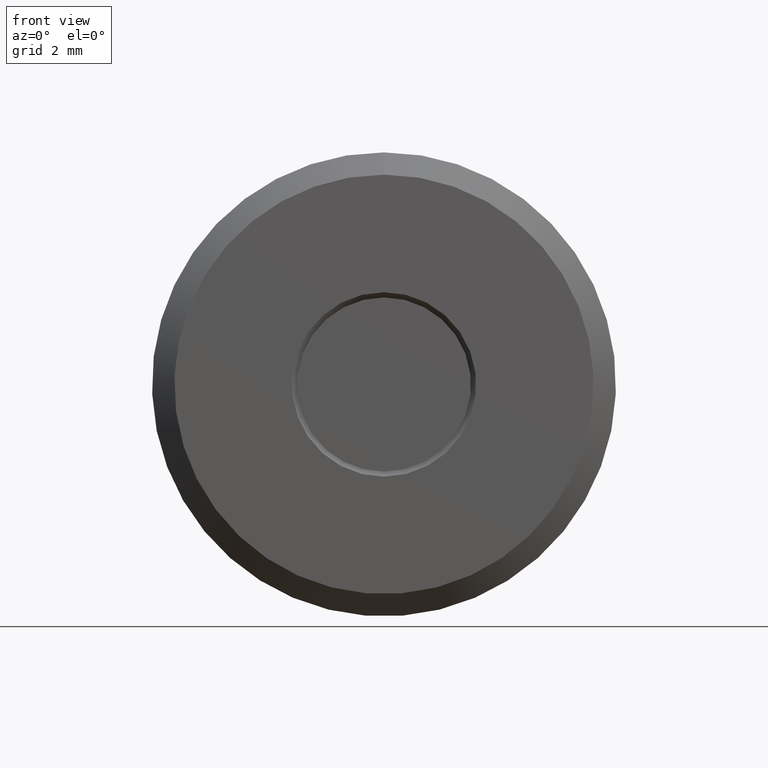
[diagram: clean part render]
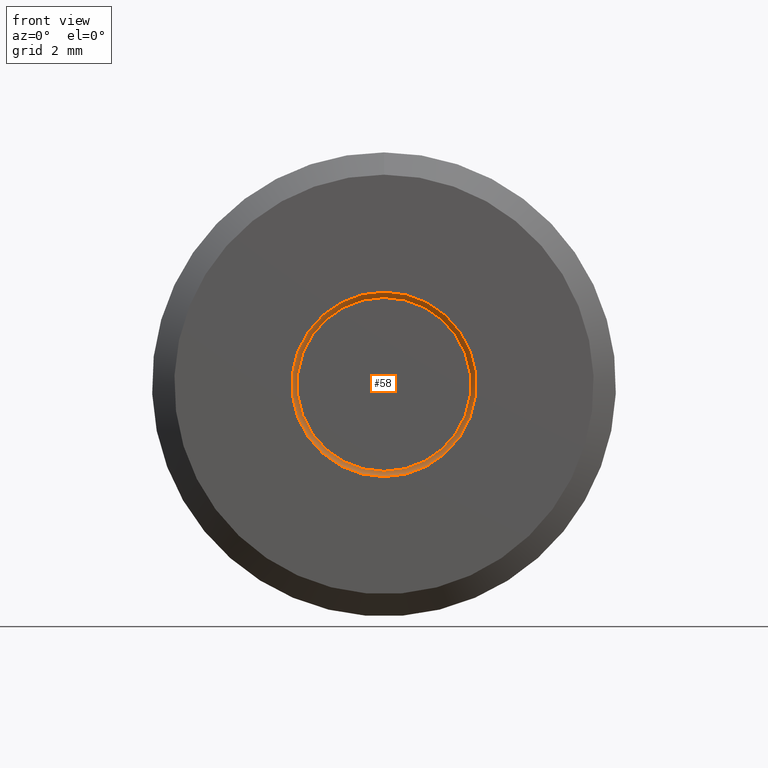
[diagram: same view with one face highlighted and labeled with its STEP entity id]
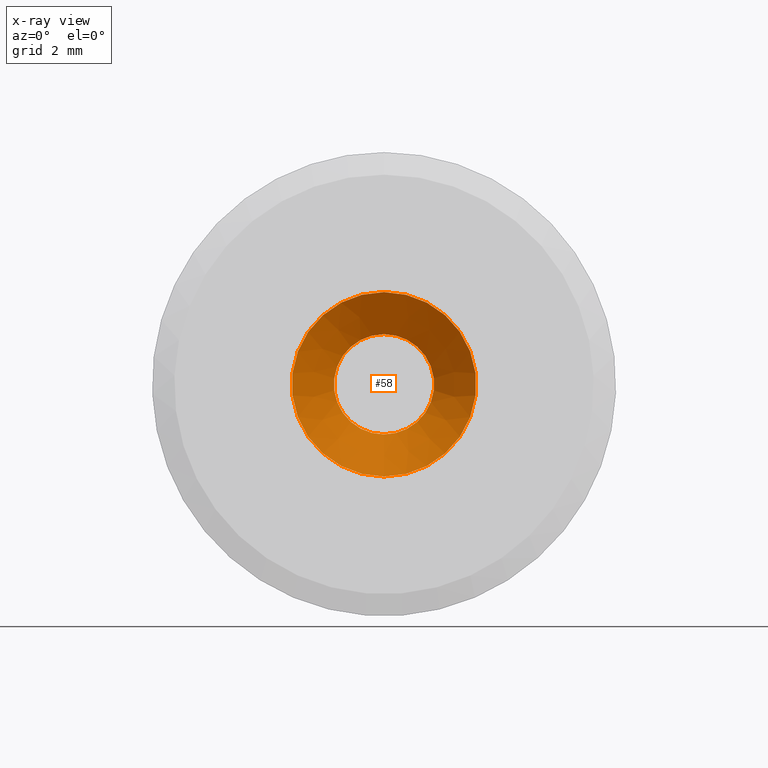
[diagram: x-ray of the same camera — body ghosted, the highlighted face saturated]
A machine part, front view. The second image highlights one B-rep face of the part: STEP entity #58.
The next image is the same camera in x-ray: the body ghosted, the highlighted face saturated — about 0% of this face is hidden behind the body in this view.
In plain terms, the highlighted conical surface has half-angle 45 deg.
Its self-contained STEP definition (entity closure, byte-faithful):
#9 = ORIENTED_EDGE ( 'NONE', *, *, #21, .F. ) ;
#21 = EDGE_CURVE ( 'NONE', #375, #375, #505, .T. ) ;
#48 = AXIS2_PLACEMENT_3D ( 'NONE', #535, #452, #490 ) ;
#58 = ADVANCED_FACE ( 'NONE', ( #427, #517 ), #109, .F. ) ;
#72 = DIRECTION ( 'NONE',  ( -0.0000000000000000000, 1.000000000000000000, -0.0000000000000000000 ) ) ;
#75 = DIRECTION ( 'NONE',  ( 0.0000000000000000000, 0.0000000000000000000, 1.000000000000000000 ) ) ;
#109 = CONICAL_SURFACE ( 'NONE', #48, 0.1242585678118648500, 0.7853981633974429500 ) ;
#113 = ORIENTED_EDGE ( 'NONE', *, *, #507, .T. ) ;
#141 = CARTESIAN_POINT ( 'NONE',  ( 0.0000000000000000000, 0.05675856781186545300, 0.06750000000000000400 ) ) ;
#161 = AXIS2_PLACEMENT_3D ( 'NONE', #455, #458, #491 ) ;
#192 = CIRCLE ( 'NONE', #271, 0.06750000000000000400 ) ;
#216 = CARTESIAN_POINT ( 'NONE',  ( 0.0000000000000000000, 0.05675856781186545300, 0.0000000000000000000 ) ) ;
#264 = CARTESIAN_POINT ( 'NONE',  ( 0.0000000000000000000, -9.612883742449206100E-019, 0.1242585678118648500 ) ) ;
#271 = AXIS2_PLACEMENT_3D ( 'NONE', #216, #72, #75 ) ;
#375 = VERTEX_POINT ( 'NONE', #264 ) ;
#406 = EDGE_LOOP ( 'NONE', ( #9 ) ) ;
#425 = VERTEX_POINT ( 'NONE', #141 ) ;
#427 = FACE_BOUND ( 'NONE', #488, .T. ) ;
#452 = DIRECTION ( 'NONE',  ( 0.0000000000000000000, -1.000000000000000000, 0.0000000000000000000 ) ) ;
#455 = CARTESIAN_POINT ( 'NONE',  ( 0.0000000000000000000, -9.612883742449206100E-019, 0.0000000000000000000 ) ) ;
#458 = DIRECTION ( 'NONE',  ( -0.0000000000000000000, 1.000000000000000000, -0.0000000000000000000 ) ) ;
#488 = EDGE_LOOP ( 'NONE', ( #113 ) ) ;
#490 = DIRECTION ( 'NONE',  ( 0.0000000000000000000, 0.0000000000000000000, -1.000000000000000000 ) ) ;
#491 = DIRECTION ( 'NONE',  ( 0.0000000000000000000, 0.0000000000000000000, 1.000000000000000000 ) ) ;
#505 = CIRCLE ( 'NONE', #161, 0.1242585678118648500 ) ;
#507 = EDGE_CURVE ( 'NONE', #425, #425, #192, .T. ) ;
#517 = FACE_OUTER_BOUND ( 'NONE', #406, .T. ) ;
#535 = CARTESIAN_POINT ( 'NONE',  ( 0.0000000000000000000, -9.612883742449206100E-019, 0.0000000000000000000 ) ) ;